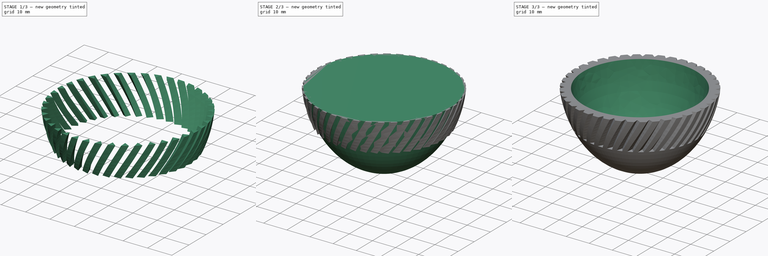
[diagram: build sequence overview — one tinted view per stage of 3, left to right]
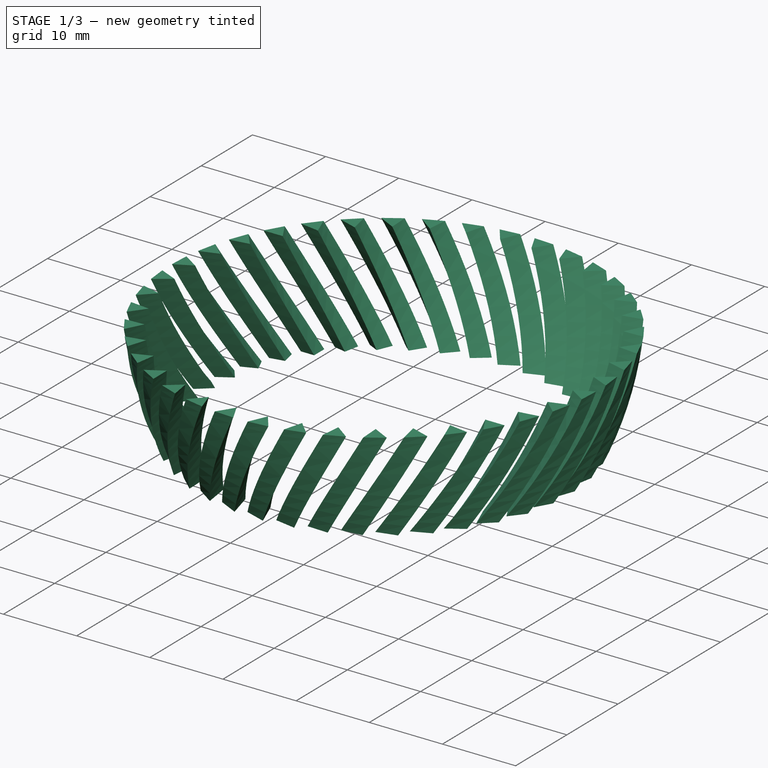
[diagram: stage 1 of 3 — iso view after this stage's code; geometry added in this stage tinted green]
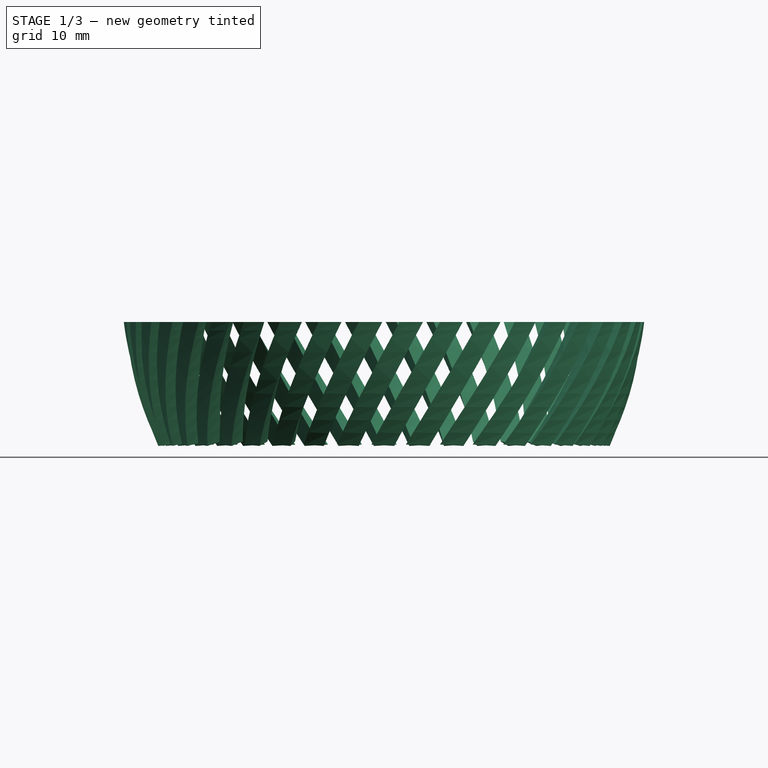
[diagram: stage 1 of 3 — front view after this stage's code; geometry added in this stage tinted green]
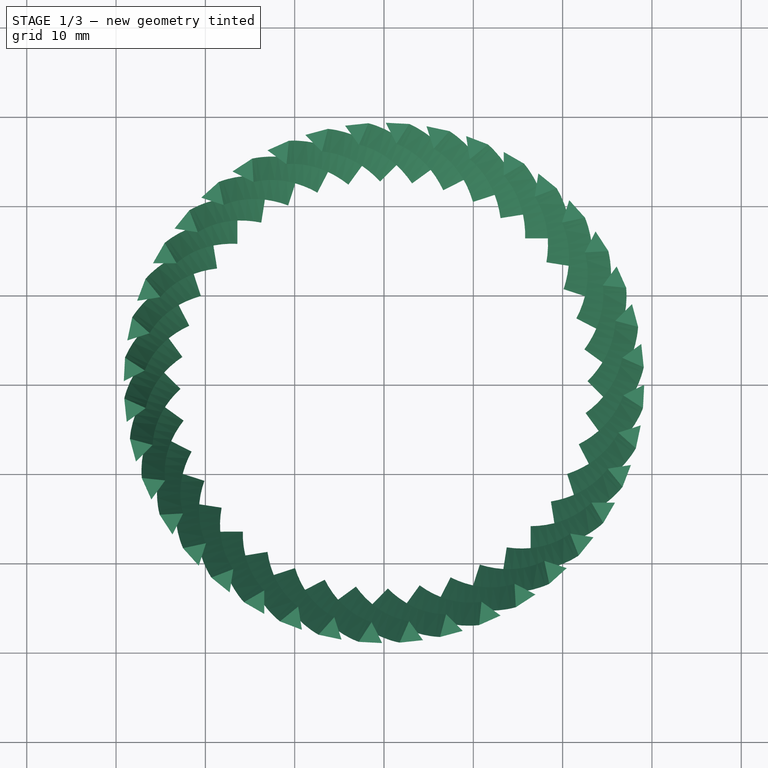
[diagram: stage 1 of 3 — top view after this stage's code; geometry added in this stage tinted green]
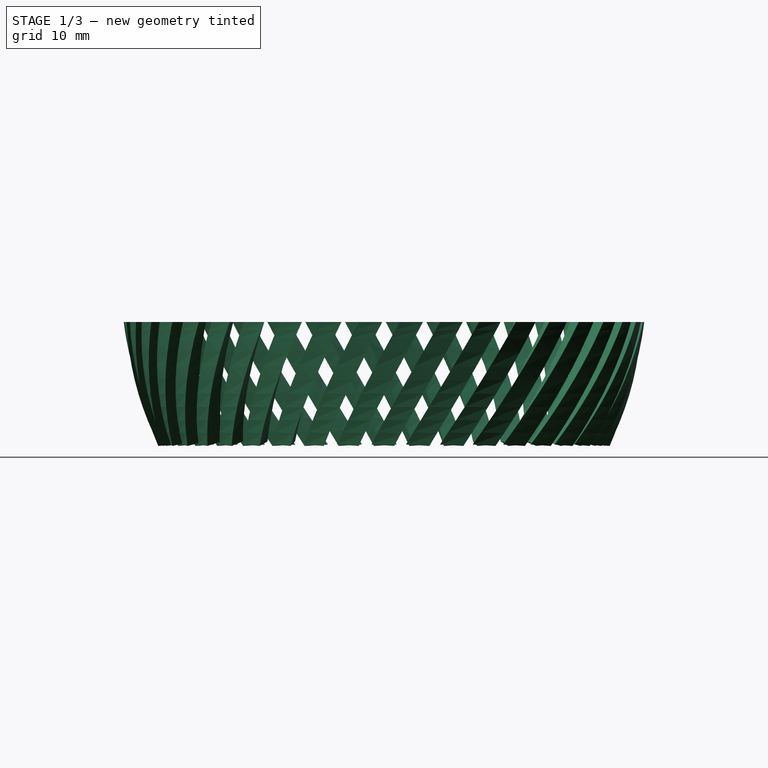
[diagram: stage 1 of 3 — right view after this stage's code; geometry added in this stage tinted green]
FCSTD DOCUMENT  (FreeCAD 1.1R39708 (Git))
Label: notchedbowl
License: All rights reserved
objects: Sketcher::SketchObject×4, Part::FeaturePython×3, Part::Revolution×1, Part::Thickness×1, Part::Line×1, Part::Sweep×1, Part::Cut×1
note: 16 computed .brp shape members not serialized (recipe doc carries the construction recipe); baked Part::Feature solids carry a one-line shape summary decoded from their .brp

FEATURE [Part::FeaturePython] Segment_Surface  # WARN: FeaturePython — macro-defined, semantics opaque (R4)
  Direction = 0
  KnotsV = [1]
  NumberU = 1
  NumberV = 1
  Option = 1
  Source = -> Thickness [Face1]
FEATURE [Sketcher::SketchObject] Mapped_Sketch
  ArcFitTolerance = 1e-06
  AttachmentSupport = -> [Segment_Surface]
  ExternalTypes = [0]
  FullyConstrained = true
  MakeInternals = false
  sketch-geometry (4):
    g0: LineSegment [constr] StartX=0 StartY=0 StartZ=0 EndX=153.999 EndY=0 EndZ=0
    g1: LineSegment [constr] StartX=153.999 StartY=0 StartZ=0 EndX=153.999 EndY=12.5333 EndZ=0
    g2: LineSegment [constr] StartX=153.999 StartY=12.5333 StartZ=0 EndX=0 EndY=12.5333 EndZ=0
    g3: LineSegment [constr] StartX=0 StartY=12.5333 StartZ=0 EndX=0 EndY=0 EndZ=0
  constraints (11):
    c: Coincident(g0,g-1)
    c: Coincident(g0,g1)
    c: Coincident(g1,g2)
    c: Coincident(g2,g3)
    c: Coincident(g3,g0)
    c: Horizontal(g0)
    c: Horizontal(g2)
    c: Vertical(g1)
    c: Vertical(g3)
    c: DistanceX(g2,g2) = 153.999
    c: DistanceY(g1,g1) = 12.5333
FEATURE [Sketcher::SketchObject] Sketch001
  ArcFitTolerance = 1e-06
  ExternalTypes = [0,0]
  FullyConstrained = false
  MakeInternals = false
  sketch-geometry (1):
    g0: LineSegment StartX=0 StartY=0 StartZ=0 EndX=6.42473 EndY=12.5333 EndZ=0
  constraints (2):
    c: Coincident(g0,g-1)
    c: Horizontal(g0,g-3)
FEATURE [Part::FeaturePython] Sketch_On_Surface  # WARN: FeaturePython — macro-defined, semantics opaque (R4)
  ConstructionBounds = true
  ExtraObjects = -> [Sketch001]
  FillExtrusion = true
  FillFaces = false
  ReverseU = false
  ReverseV = false
  Sketch = -> Mapped_Sketch
  SwapUV = false
  Thickness = 0
FEATURE [Part::Line] Line
  AttacherType = Attacher::AttachEngine3D
  X1 = 0
  X2 = 0
  Y1 = 0
  Y2 = 0
  Z1 = 0
  Z2 = 10
FEATURE [Sketcher::SketchObject] Sketch002
  ArcFitTolerance = 1e-06
  AttachmentSupport = -> [Sketch_On_Surface,Line]
  ExternalTypes = [0]
  FullyConstrained = false
  MakeInternals = false
  MapMode = 48
  Placement = pos=(27.577,7.39902,31.207) rot=(0,0,1;1.83293rad)
  sketch-geometry (4):
    g0: LineSegment StartX=0 StartY=1.72917 StartZ=0 EndX=-1.31645 EndY=-0.550989 EndZ=0
    g1: LineSegment StartX=-1.31645 StartY=-0.550989 StartZ=0 EndX=1.31645 EndY=-0.550989 EndZ=0
    g2: LineSegment StartX=1.31645 StartY=-0.550989 StartZ=0 EndX=0 EndY=1.72917 EndZ=0
    g3: Circle [constr] CenterX=0 CenterY=0.209064 CenterZ=0 NormalX=0 NormalY=0 NormalZ=1 AngleXU=0 Radius=1.52011
  constraints (10):
    c: Coincident(g0,g1)
    c: Coincident(g1,g2)
    c: Coincident(g2,g0)
    c: Equal(g0,g1)
    c: Equal(g0,g2)
    c: PointOnObject(g0,g3)
    c: PointOnObject(g1,g3)
    c: PointOnObject(g2,g3)
    c: PointOnObject(g3,g-2)
    c: PointOnObject(g2,g-2)
FEATURE [Part::Sweep] Sweep
  Frenet = true
  Sections = -> [Sketch002]
  Solid = true
  Spine = -> Sketch_On_Surface [Edge1]
  Transition = 1
FEATURE [Part::FeaturePython] Array  # Draft array (typed FeaturePython)
  AlwaysSyncPlacement = false
  Angle = 360
  ArrayType = 1
  Axis = (0,0,1)
  Base = -> Sweep
  Center = (0,0,0)
  Count = 40
  ExpandArray = false
  Fuse = true
  IntervalAxis = (0,0,0)
  IntervalX = (50,0,0)
  IntervalY = (0,50,0)
  IntervalZ = (0,0,50)
  NumberCircles = 3
  NumberPolar = 40
  NumberX = 2
  NumberY = 2
  NumberZ = 1
  PlacementList = 40 placements: [(0,0,0),(0,0,0),(0,0,0),(0,0,0),(0,0,0),(0,0,0),(0,0,0),(0,0,0),(0,0,0),(0,0,0),(0,0,0),(0,0,0),(0,0,0),(0,0,0),(0,0,0),(0,0,0),(0,0,0),(0,0,0),(0,0,0),(0,0,0),(0,0,0),(0,0,0),(0,0,0),(0,0,0),(0,0,0),(0,0,0),(0,0,0),(0,0,0),(0,0,0),(0,0,0),(0,0,0),(0,0,0),(0,0,0),(0,0,0),(0,0,0),(0,0,0),(0,0,0),(0,0,0),(0,0,0),(0,0,0)]
  RadialDistance = 50
  ScaleList = (40) [(1,1,1),(1,1,1),(1,1,1),(1,1,1),(1,1,1),(1,1,1),(1,1,1),(1,1,1),(1,1,1),(1,1,1),(1,1,1),(1,1,1),(1,1,1),(1,1,1),(1,1,1),(1,1,1),(1,1,1),(1,1,1),+22 more]
  Symmetry = 1
  TangentialDistance = 25
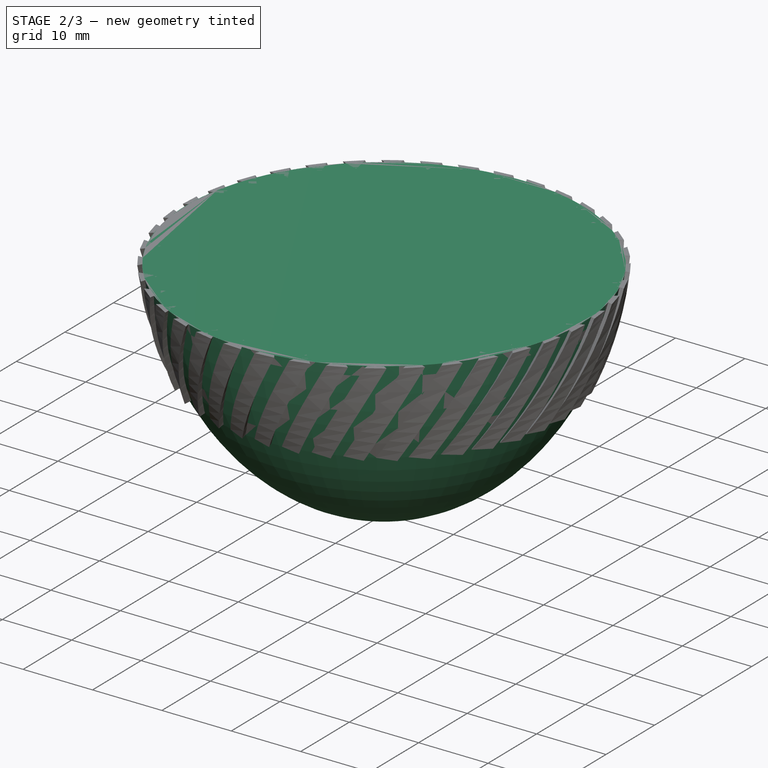
[diagram: stage 2 of 3 — iso view after this stage's code; geometry added in this stage tinted green]
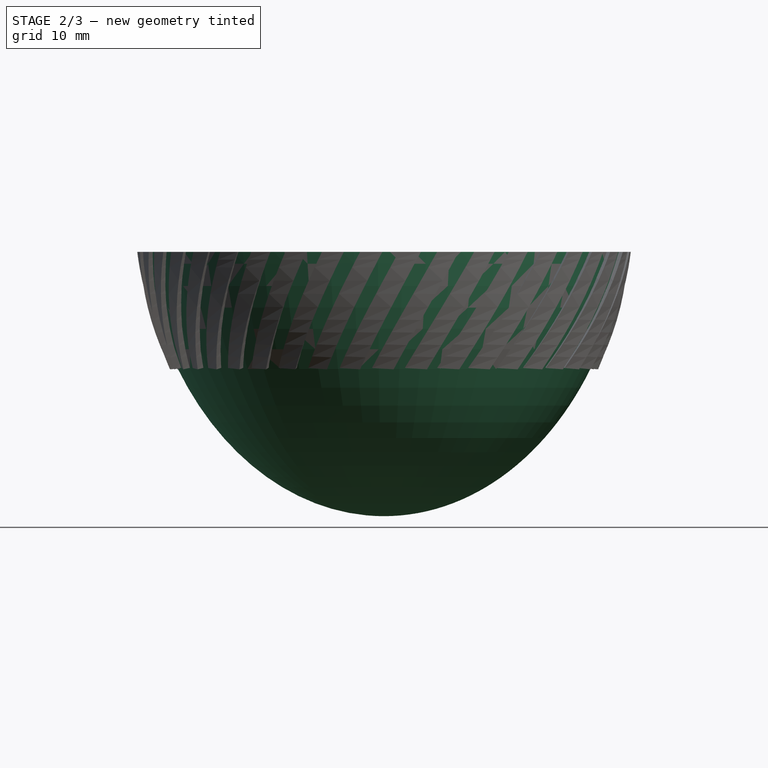
[diagram: stage 2 of 3 — front view after this stage's code; geometry added in this stage tinted green]
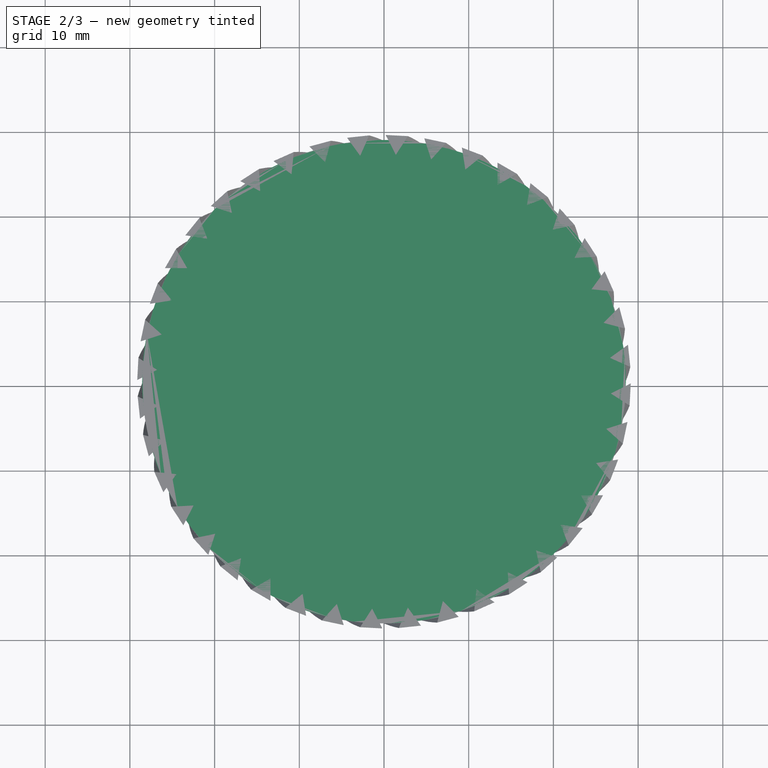
[diagram: stage 2 of 3 — top view after this stage's code; geometry added in this stage tinted green]
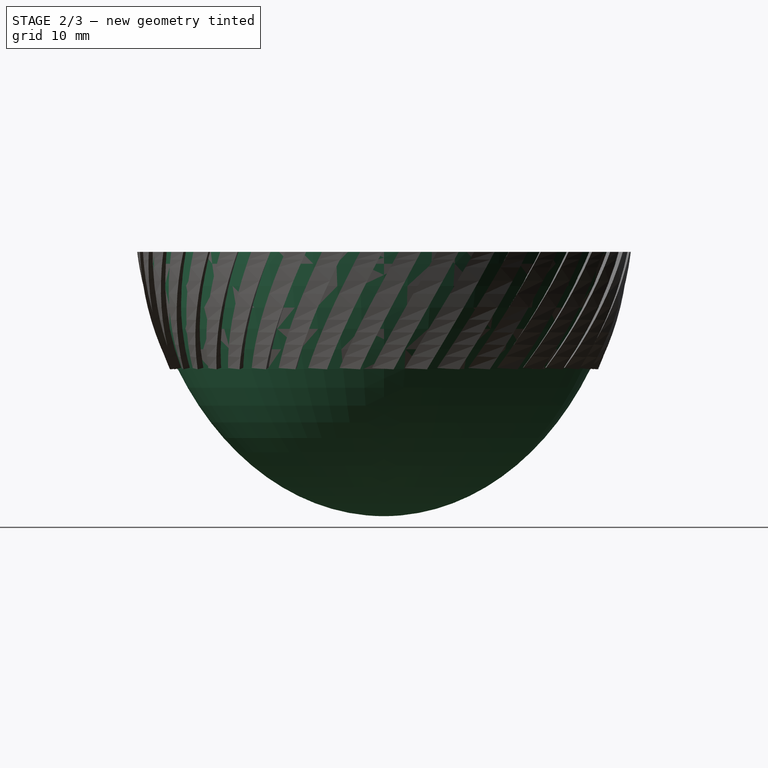
[diagram: stage 2 of 3 — right view after this stage's code; geometry added in this stage tinted green]
FEATURE [Sketcher::SketchObject] Sketch
  ArcFitTolerance = 1e-06
  ExternalTypes = [0]
  FullyConstrained = false
  MakeInternals = false
  Placement = pos=(0,0,0) rot=(1,0,0;1.5708rad)
  sketch-geometry (7):
    g0: ArcOfEllipse CenterX=0 CenterY=38.1035 CenterZ=0 NormalX=0 NormalY=0 NormalZ=1 MajorRadius=38.1035 MinorRadius=29.0318 AngleXU=-1.5708 StartAngle=0 EndAngle=1.3888
    g1: LineSegment [constr] StartX=0 StartY=0 StartZ=0 EndX=0 EndY=76.2069 EndZ=0
    g2: LineSegment [constr] StartX=29.0318 StartY=38.1035 StartZ=0 EndX=-29.0318 EndY=38.1035 EndZ=0
    g3: GeomPoint [constr] X=0 Y=13.425 Z=0
    g4: GeomPoint [constr] X=0 Y=62.782 Z=0
    g5: LineSegment StartX=0 StartY=0 StartZ=0 EndX=0 EndY=31.207 EndZ=0
    g6: LineSegment StartX=0 StartY=31.207 StartZ=0 EndX=28.5523 EndY=31.207 EndZ=0
  constraints (9):
    c: InternalAlignment(g1-g4 -> g0) x4
    c: PointOnObject(g0,g-2)
    c: Coincident(g0,g-1)
    c: Coincident(g5,g0)
    c: PointOnObject(g5,g1)
    c: Vertical(g5)
    c: Coincident(g6,g5)
    c: Coincident(g6,g0)
    c: Horizontal(g6)
FEATURE [Part::Revolution] Revolve
  Angle = 360
  Axis = (0,0,1)
  Base = (0,0,0)
  FaceMakerClass = Part::FaceMakerBullseye
  Solid = true
  Source = -> Sketch
  Symmetric = false
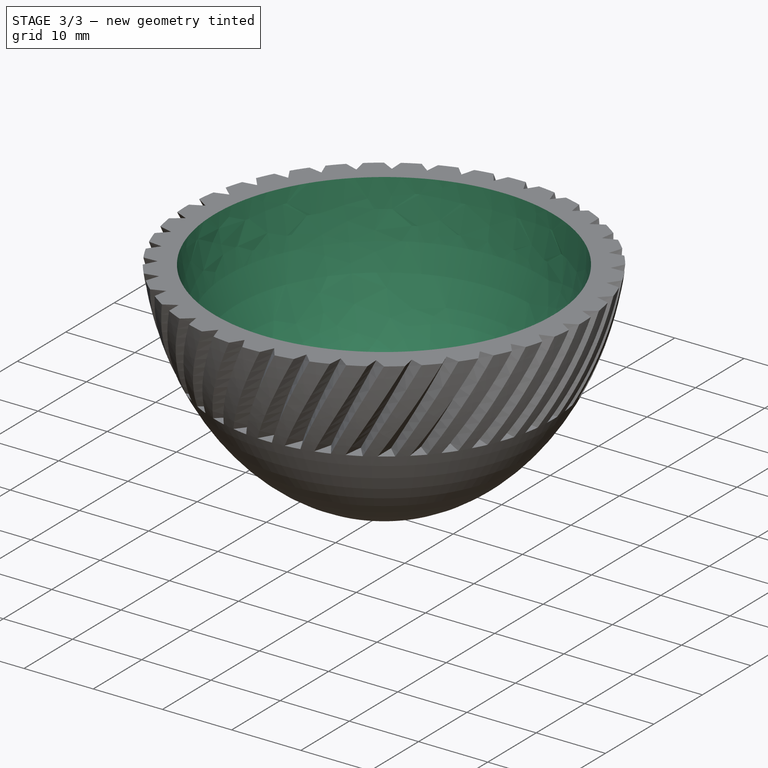
[diagram: stage 3 of 3 — iso view after this stage's code; geometry added in this stage tinted green]
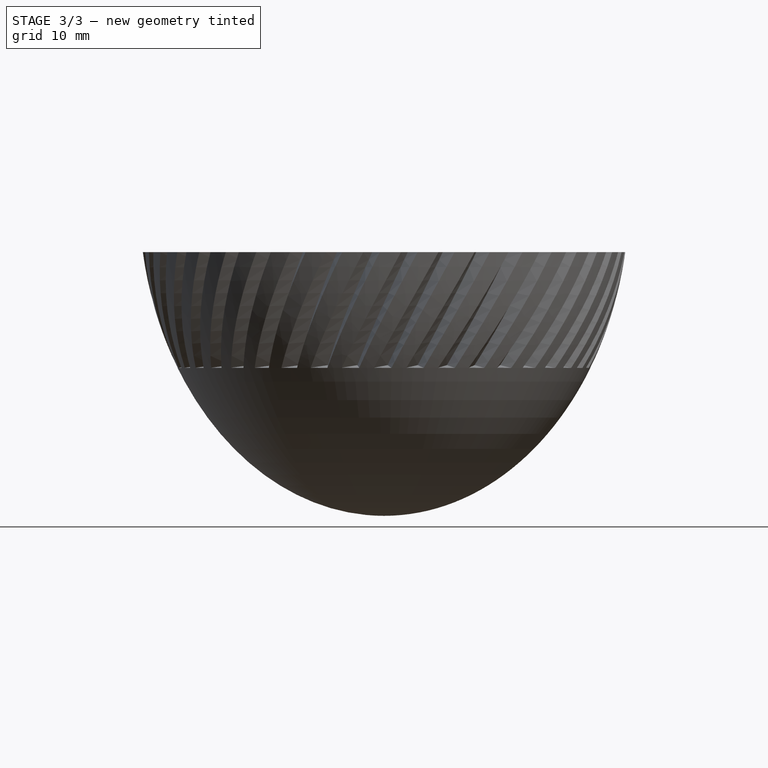
[diagram: stage 3 of 3 — front view after this stage's code; geometry added in this stage tinted green]
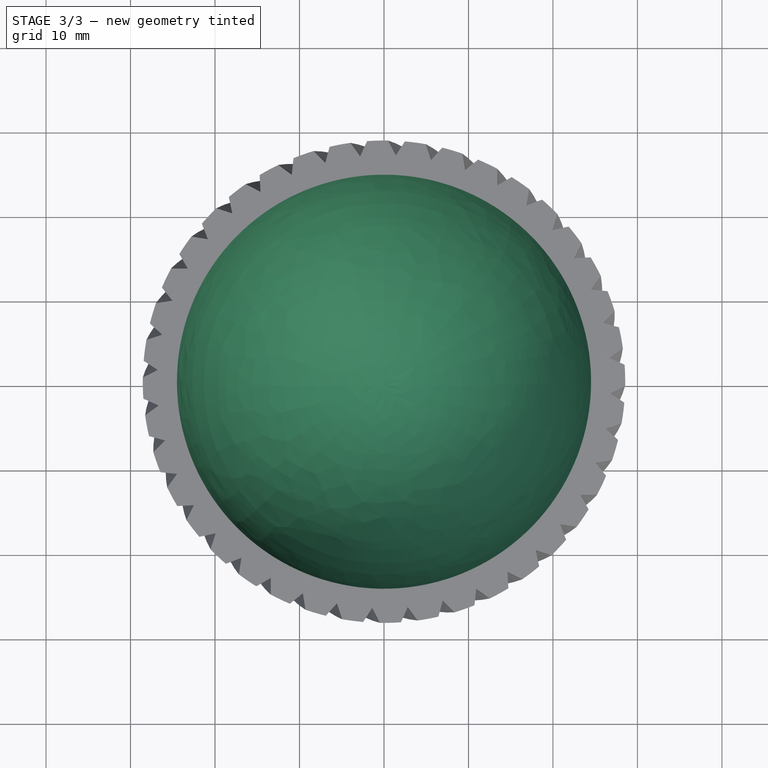
[diagram: stage 3 of 3 — top view after this stage's code; geometry added in this stage tinted green]
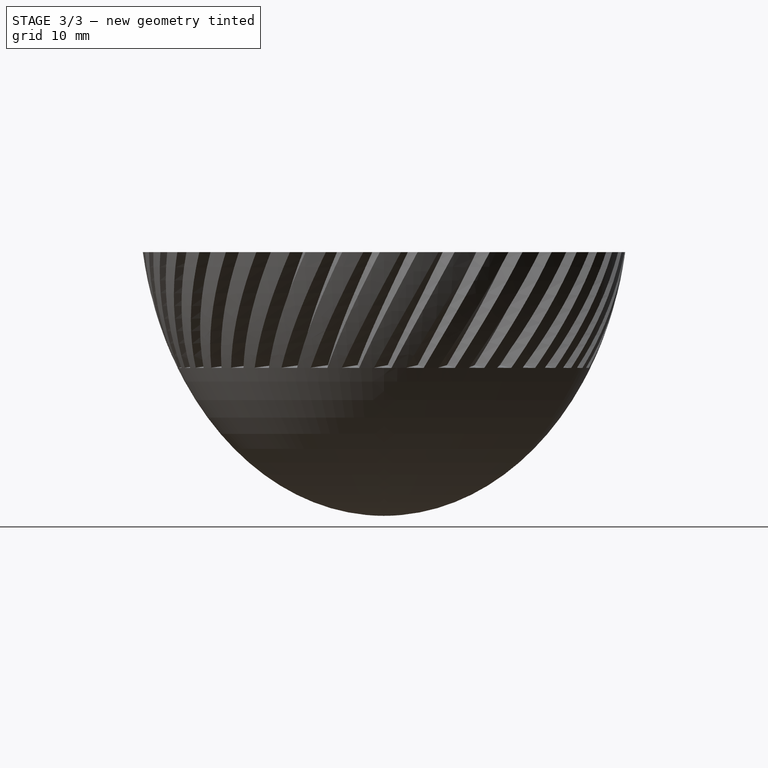
[diagram: stage 3 of 3 — right view after this stage's code; geometry added in this stage tinted green]
FEATURE [Part::Thickness] Thickness
  Faces = -> Revolve [Face2]
  Intersection = false
  Join = 0
  Mode = 0
  SelfIntersection = false
  Value = -4
FEATURE [Part::Cut] Cut
  Base = -> Thickness
  Tool = -> Array
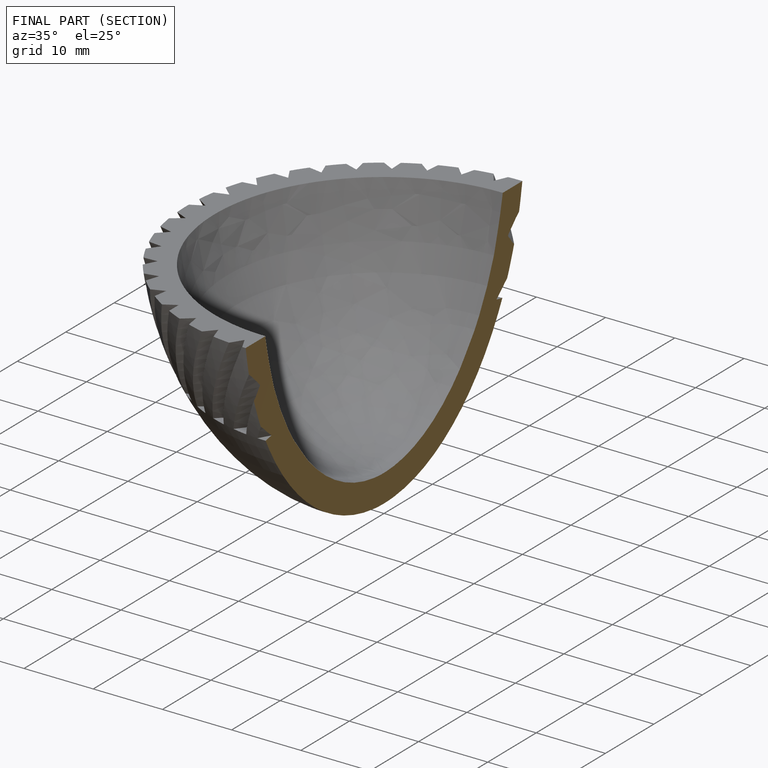
[diagram: finished part — half-section view (interior)]
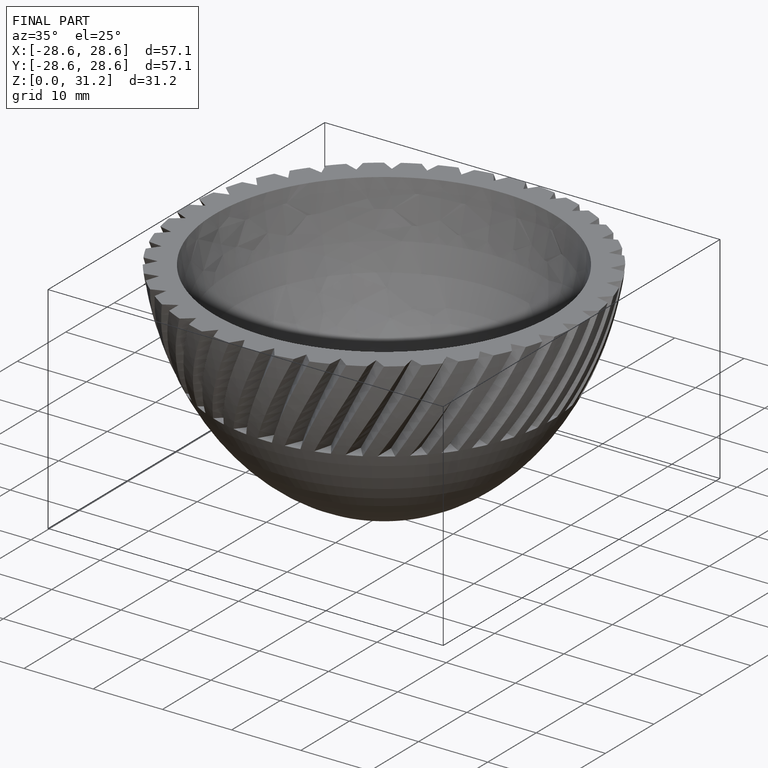
[diagram: finished part — iso view with bounding-box wireframe]
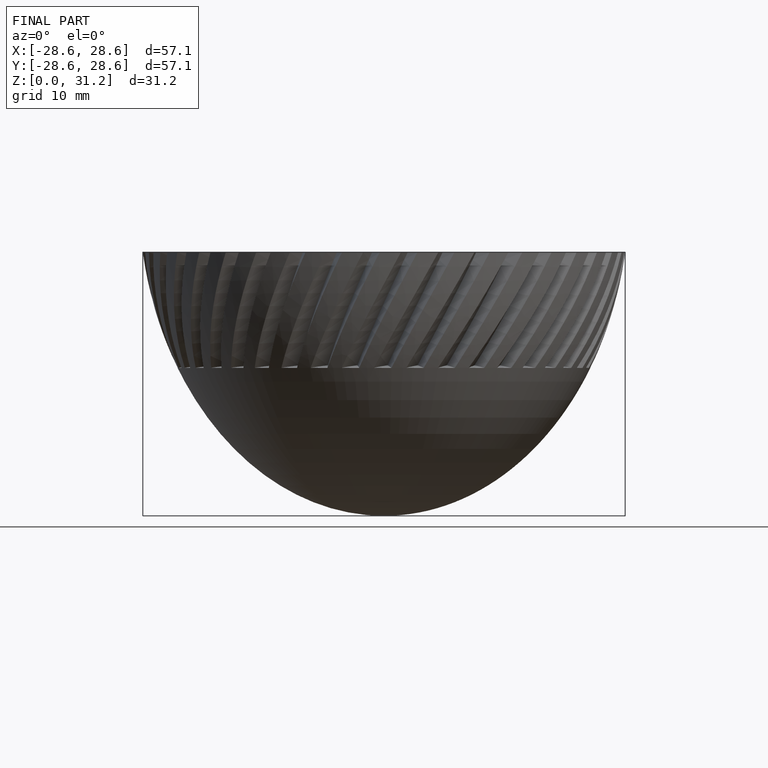
[diagram: finished part — front view with bounding-box wireframe]
